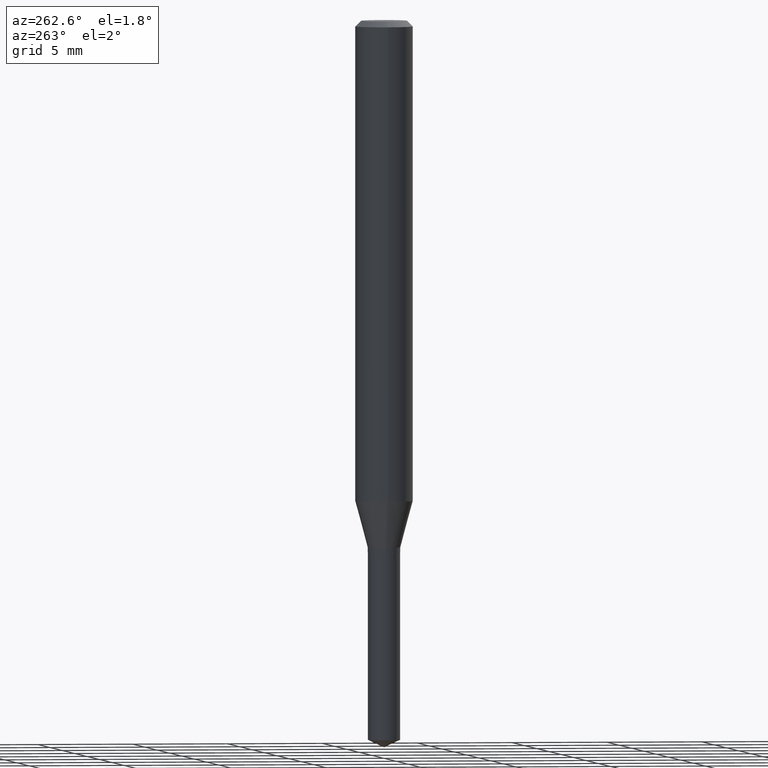
[diagram: clean part render]
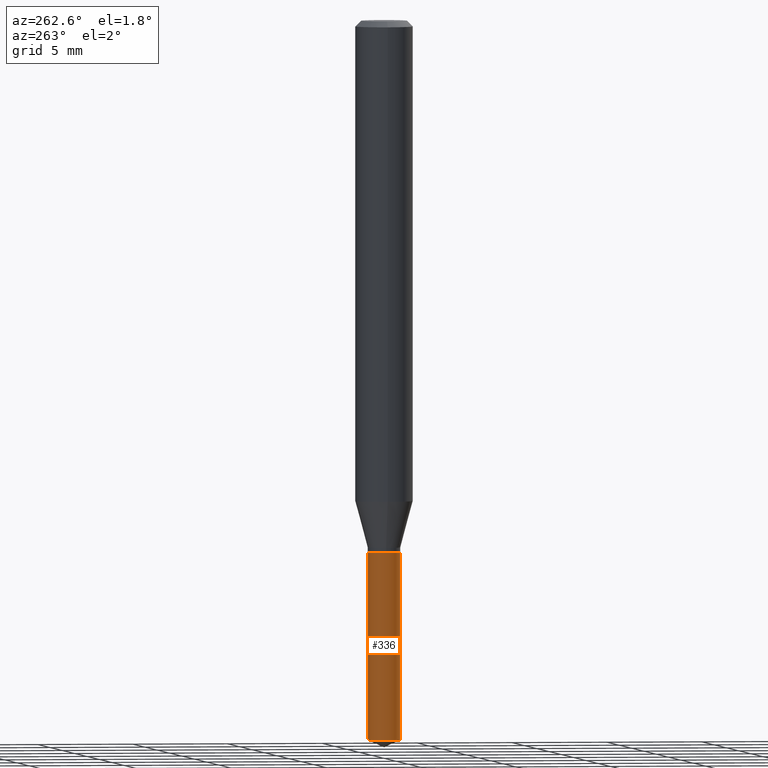
[diagram: same view with one face highlighted and labeled with its STEP entity id]
A machine part, auxiliary view. The second image highlights one B-rep face of the part: STEP entity #336.
In plain terms, the highlighted cylindrical surface (edge-blend (fillet) strip) has radius 0.8496 mm, axis along (-0, 0, 1).
Its self-contained STEP definition (entity closure, byte-faithful):
#26 = DIRECTION ( 'NONE',  ( -2.445402730703145379E-29, 3.491575962694140016E-15, 1.000000000000000000 ) ) ;
#29 = DIRECTION ( 'NONE',  ( -2.445402730703145379E-29, 3.491575962694140016E-15, 1.000000000000000000 ) ) ;
#58 = DIRECTION ( 'NONE',  ( -6.982962677686264344E-15, -1.000000000000000000, 4.083479811157344024E-15 ) ) ;
#62 = AXIS2_PLACEMENT_3D ( 'NONE', #372, #191, #152 ) ;
#71 = VECTOR ( 'NONE', #273, 39.37007874015748143 ) ;
#73 = AXIS2_PLACEMENT_3D ( 'NONE', #424, #162, #429 ) ;
#88 = CIRCLE ( 'NONE', #62, 0.03345000000000000057 ) ;
#97 = LINE ( 'NONE', #433, #264 ) ;
#98 = ORIENTED_EDGE ( 'NONE', *, *, #414, .T. ) ;
#107 = EDGE_CURVE ( 'NONE', #483, #268, #231, .T. ) ;
#152 = DIRECTION ( 'NONE',  ( -6.982962677686264344E-15, -1.000000000000000000, 0.000000000000000000 ) ) ;
#162 = DIRECTION ( 'NONE',  ( -2.445402730703145379E-29, 3.491575962694140016E-15, 1.000000000000000000 ) ) ;
#176 = EDGE_CURVE ( 'NONE', #234, #483, #97, .T. ) ;
#179 = ORIENTED_EDGE ( 'NONE', *, *, #480, .T. ) ;
#191 = DIRECTION ( 'NONE',  ( -2.445402730703145379E-29, 3.491575962694140016E-15, 1.000000000000000000 ) ) ;
#227 = EDGE_LOOP ( 'NONE', ( #419, #179, #98, #304 ) ) ;
#231 = CIRCLE ( 'NONE', #73, 0.03345000000000000057 ) ;
#234 = VERTEX_POINT ( 'NONE', #331 ) ;
#250 = FACE_OUTER_BOUND ( 'NONE', #227, .T. ) ;
#264 = VECTOR ( 'NONE', #29, 39.37007874015748143 ) ;
#268 = VERTEX_POINT ( 'NONE', #403 ) ;
#273 = DIRECTION ( 'NONE',  ( -2.445402730703145379E-29, 3.491575962694140016E-15, 1.000000000000000000 ) ) ;
#303 = CARTESIAN_POINT ( 'NONE',  ( 2.376765451117897545E-16, 0.03344999999999617724, -1.094500000000000028 ) ) ;
#304 = ORIENTED_EDGE ( 'NONE', *, *, #107, .F. ) ;
#331 = CARTESIAN_POINT ( 'NONE',  ( 2.376765451117897052E-16, 0.03344999999999482415, -1.480502008834715610 ) ) ;
#336 = ADVANCED_FACE ( 'NONE', ( #250 ), #394, .T. ) ;
#362 = CARTESIAN_POINT ( 'NONE',  ( 2.676565608369631794E-29, -3.821426325363822773E-15, -1.094499999999999806 ) ) ;
#368 = CARTESIAN_POINT ( 'NONE',  ( -2.335801015685693209E-16, -0.03345000000000517004, -1.480502008834715610 ) ) ;
#370 = CARTESIAN_POINT ( 'NONE',  ( -2.335801015685788365E-16, -0.03345000000000382390, -1.094499999999999806 ) ) ;
#372 = CARTESIAN_POINT ( 'NONE',  ( 3.620495974830945806E-29, -5.169181660962767472E-15, -1.480502008834715610 ) ) ;
#394 = CYLINDRICAL_SURFACE ( 'NONE', #416, 0.03345000000000000057 ) ;
#403 = CARTESIAN_POINT ( 'NONE',  ( -2.335801015685788365E-16, -0.03345000000000382390, -1.094499999999999806 ) ) ;
#414 = EDGE_CURVE ( 'NONE', #451, #268, #448, .T. ) ;
#416 = AXIS2_PLACEMENT_3D ( 'NONE', #362, #26, #58 ) ;
#419 = ORIENTED_EDGE ( 'NONE', *, *, #176, .F. ) ;
#424 = CARTESIAN_POINT ( 'NONE',  ( 2.676565608369631794E-29, -3.821426325363822773E-15, -1.094499999999999806 ) ) ;
#429 = DIRECTION ( 'NONE',  ( -6.982962677686264344E-15, -1.000000000000000000, 4.083479811157344024E-15 ) ) ;
#433 = CARTESIAN_POINT ( 'NONE',  ( 2.376765451117802389E-16, 0.03344999999999617724, -1.094500000000000028 ) ) ;
#448 = LINE ( 'NONE', #370, #71 ) ;
#451 = VERTEX_POINT ( 'NONE', #368 ) ;
#480 = EDGE_CURVE ( 'NONE', #234, #451, #88, .T. ) ;
#483 = VERTEX_POINT ( 'NONE', #303 ) ;